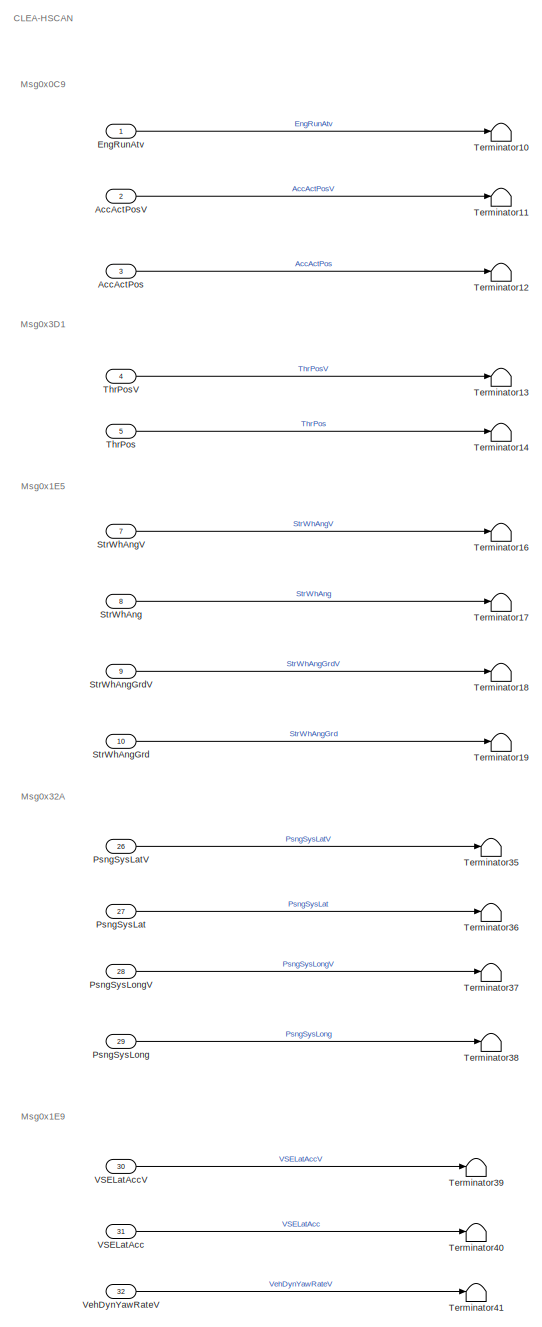
[diagram: root canvas - part 1/8, top left region]
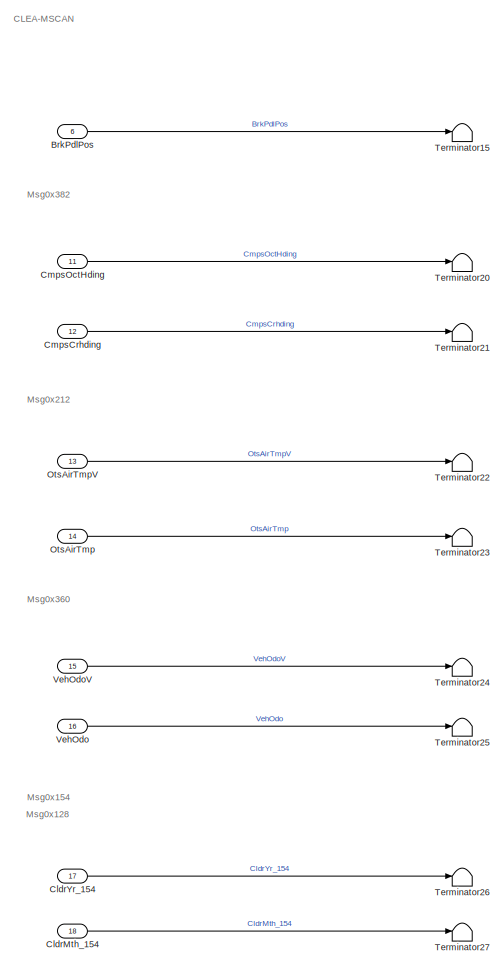
[diagram: root canvas - part 2/8, top center region]
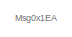
[diagram: root canvas - part 3/8, top center region]
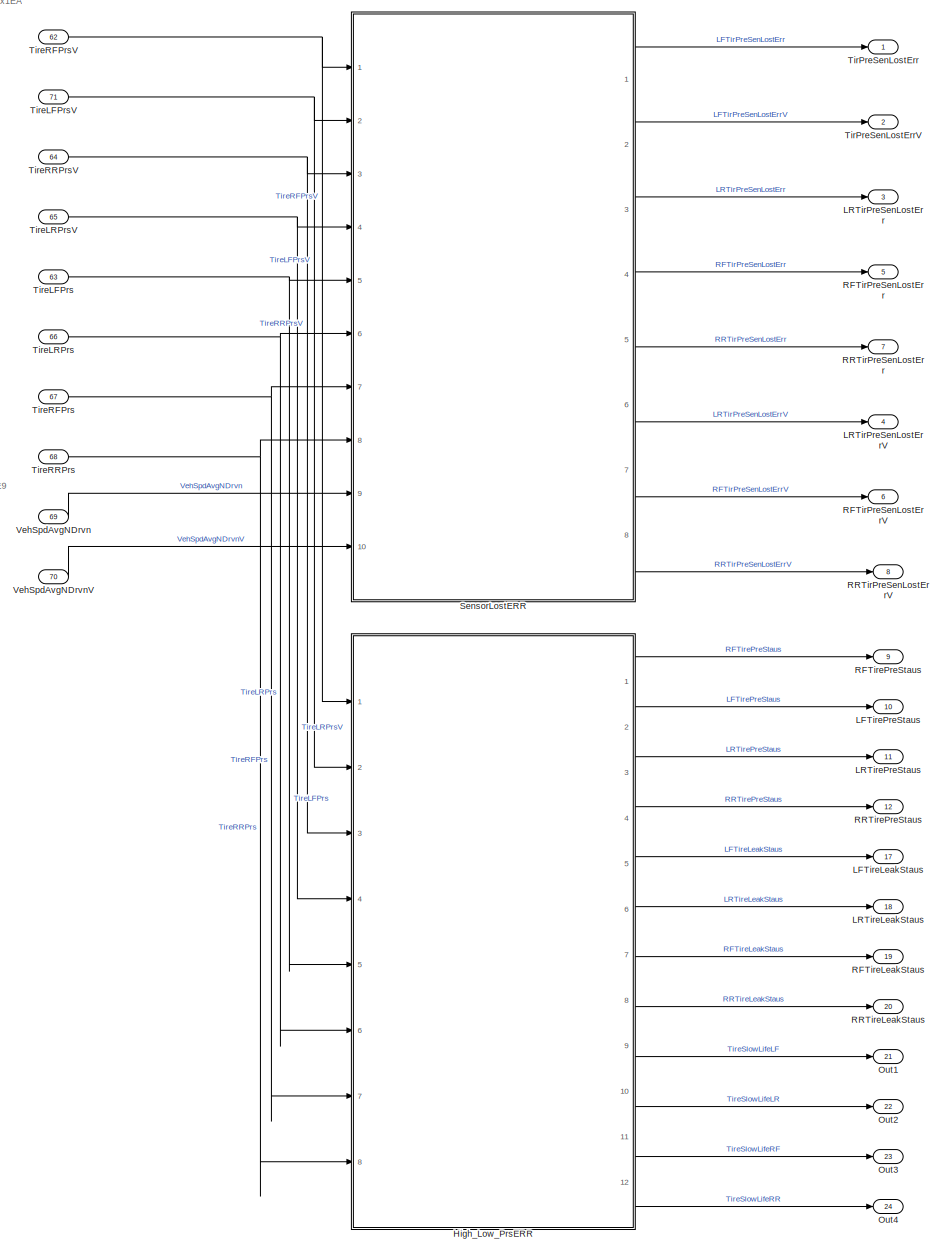
[diagram: root canvas - part 4/8, top right region]
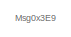
[diagram: root canvas - part 5/8, top center region]
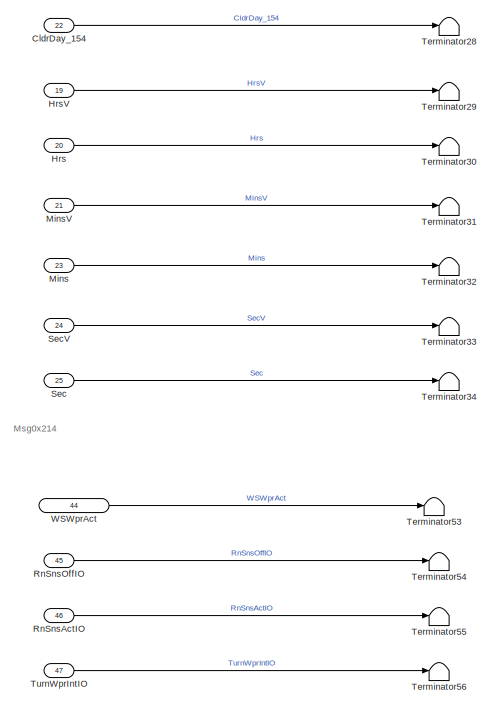
[diagram: root canvas - part 6/8, central region]
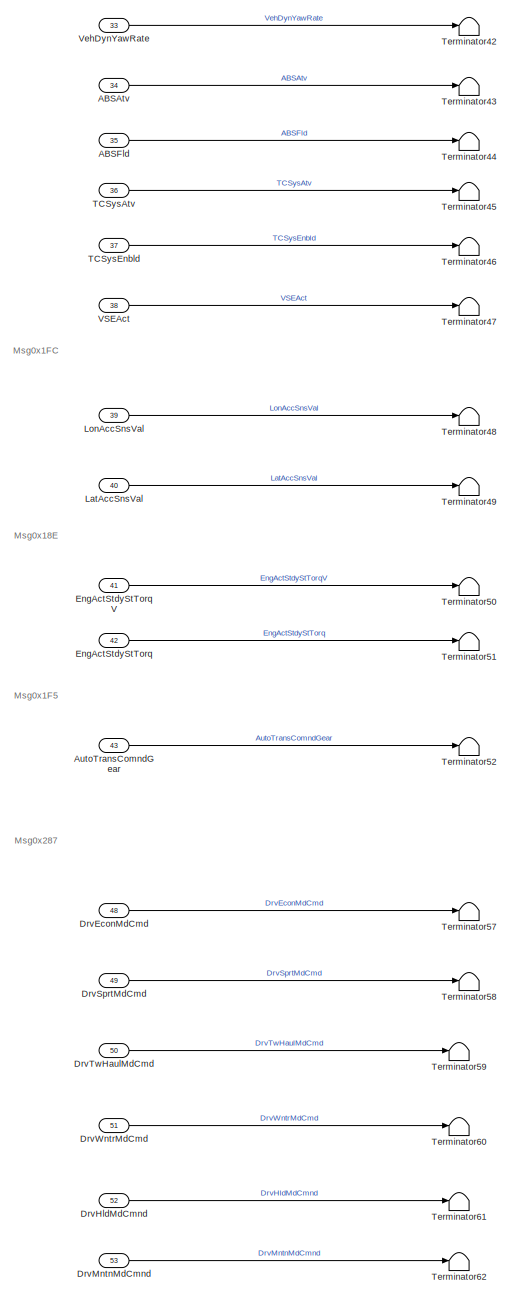
[diagram: root canvas - part 7/8, bottom left region]
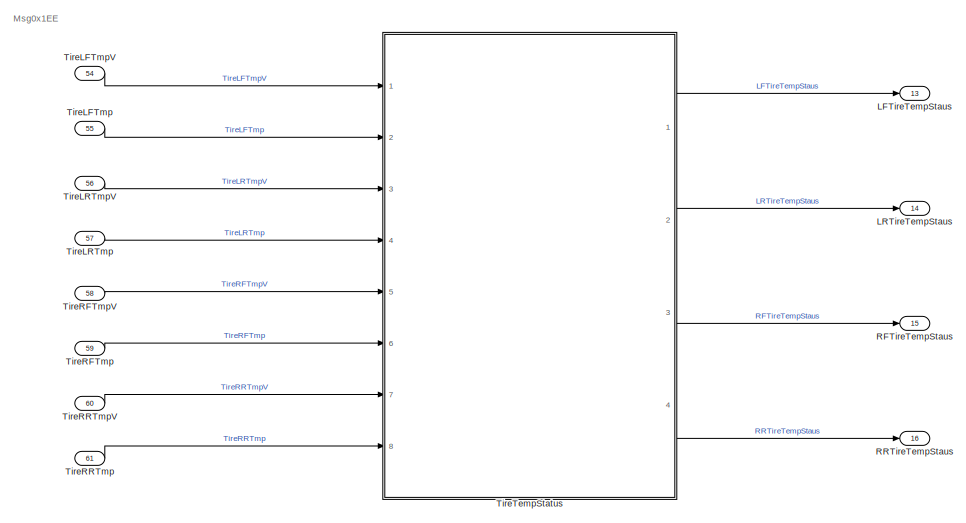
[diagram: root canvas - part 8/8, bottom right region]
MODEL slx_4b5890fa761c
KIND model
CONFIG AbsTol = auto
CONFIG EnableMultiTasking = off
CONFIG FixedStep = 0.1
CONFIG MaxStep = auto
CONFIG MinStep = auto
CONFIG RelTol = 1e-3
CONFIG SampleTimeConstraint = Unconstrained
CONFIG Solver = FixedStepDiscrete
CONFIG SolverName = FixedStepDiscrete
CONFIG StartTime = 0.0
CONFIG StopTime = 10000
WORKSPACE source: MAT-file member
WORKSPACE AilrflowValidFlag1 = [0.01235 0.03834 0.06233 0.08839 0.11261 0.13833 0.16348 0.18843 0.2134 0.23767 0.26241 0.28847 ... (108920 elements, 54460x2)]
BLOCK [Inport] ABSAtv
  IconDisplay = Port number
  OutDataTypeStr = uint8
  Port = 34
BLOCK [Inport] ABSFld
  IconDisplay = Port number
  OutDataTypeStr = uint8
  Port = 35
BLOCK [Inport] AccActPos
  IconDisplay = Port number
  OutDataTypeStr = uint8
  Port = 3
BLOCK [Inport] AccActPosV
  IconDisplay = Port number
  OutDataTypeStr = uint8
  Port = 2
BLOCK [Inport] AutoTransComndGear
  IconDisplay = Port number
  OutDataTypeStr = uint8
  Port = 43
BLOCK [Inport] BrkPdlPos
  IconDisplay = Port number
  OutDataTypeStr = uint8
  Port = 6
BLOCK [Inport] CldrDay_154
  IconDisplay = Port number
  OutDataTypeStr = uint8
  Port = 22
BLOCK [Inport] CldrMth_154
  IconDisplay = Port number
  OutDataTypeStr = uint8
  Port = 18
BLOCK [Inport] CldrYr_154
  IconDisplay = Port number
  OutDataTypeStr = uint16
  Port = 17
BLOCK [Inport] CmpsCrhding
  IconDisplay = Port number
  OutDataTypeStr = uint16
  Port = 12
BLOCK [Inport] CmpsOctHding
  IconDisplay = Port number
  OutDataTypeStr = uint8
  Port = 11
BLOCK [Inport] DrvEconMdCmd
  IconDisplay = Port number
  OutDataTypeStr = uint8
  Port = 48
BLOCK [Inport] DrvHldMdCmnd
  IconDisplay = Port number
  OutDataTypeStr = uint8
  Port = 52
BLOCK [Inport] DrvMntnMdCmnd
  IconDisplay = Port number
  OutDataTypeStr = uint8
  Port = 53
BLOCK [Inport] DrvSprtMdCmd
  IconDisplay = Port number
  OutDataTypeStr = uint8
  Port = 49
BLOCK [Inport] DrvTwHaulMdCmd
  IconDisplay = Port number
  OutDataTypeStr = uint8
  Port = 50
BLOCK [Inport] DrvWntrMdCmd
  IconDisplay = Port number
  OutDataTypeStr = uint8
  Port = 51
BLOCK [Inport] EngActStdyStTorq
  IconDisplay = Port number
  OutDataTypeStr = double
  Port = 42
BLOCK [Inport] EngActStdyStTorqV
  IconDisplay = Port number
  OutDataTypeStr = uint8
  Port = 41
BLOCK [Inport] EngRunAtv
  IconDisplay = Port number
  OutDataTypeStr = uint8
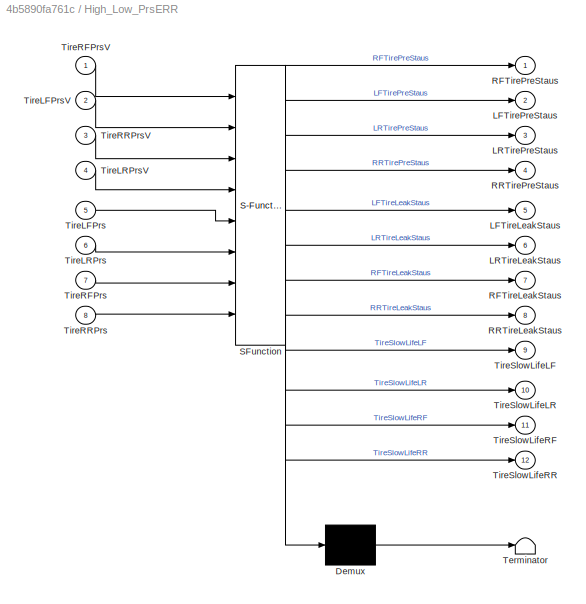
BLOCK [SubSystem] High_Low_PrsERR
  ErrorFcn = Stateflow.Translate.translate
  PermitHierarchicalResolution = ExplicitOnly
  Ports = [8, 12]
  RequestExecContextInheritance = off
  SFBlockType = Chart
  TreatAsAtomicUnit = on
  Variant = off
BLOCK [Demux] High_Low_PrsERR/ Demux 
  Outputs = 1
  Ports = [1, 1]
BLOCK [S-Function] High_Low_PrsERR/ SFunction 
  EnableBusSupport = on
  FunctionName = sf_sfun
  Parameters = pTireHighPreDWLimit,pTireHighPreUpLimit,pTireLowPreDWLimit,pTireLowPreUpLimit
  PortCounts = [8 13]
  Ports = [8, 13]
  SFcnIsStateOwnerBlock = off
  SFunctionDeploymentMode = off
  Tag = Stateflow S-Function ITireAppMdl 1
BLOCK [Terminator] High_Low_PrsERR/ Terminator 
BLOCK [Outport] High_Low_PrsERR/LFTireLeakStaus
  IconDisplay = Port number
  Port = 5
BLOCK [Outport] High_Low_PrsERR/LFTirePreStaus
  IconDisplay = Port number
  Port = 2
BLOCK [Outport] High_Low_PrsERR/LRTireLeakStaus
  IconDisplay = Port number
  Port = 6
BLOCK [Outport] High_Low_PrsERR/LRTirePreStaus
  IconDisplay = Port number
  Port = 3
BLOCK [Outport] High_Low_PrsERR/RFTireLeakStaus
  IconDisplay = Port number
  Port = 7
BLOCK [Outport] High_Low_PrsERR/RFTirePreStaus
  IconDisplay = Port number
BLOCK [Outport] High_Low_PrsERR/RRTireLeakStaus
  IconDisplay = Port number
  Port = 8
BLOCK [Outport] High_Low_PrsERR/RRTirePreStaus
  IconDisplay = Port number
  Port = 4
BLOCK [Inport] High_Low_PrsERR/TireLFPrs
  IconDisplay = Port number
  Port = 5
BLOCK [Inport] High_Low_PrsERR/TireLFPrsV
  IconDisplay = Port number
  Port = 2
BLOCK [Inport] High_Low_PrsERR/TireLRPrs
  IconDisplay = Port number
  Port = 6
BLOCK [Inport] High_Low_PrsERR/TireLRPrsV
  IconDisplay = Port number
  Port = 4
BLOCK [Inport] High_Low_PrsERR/TireRFPrs
  IconDisplay = Port number
  Port = 7
BLOCK [Inport] High_Low_PrsERR/TireRFPrsV
  IconDisplay = Port number
BLOCK [Inport] High_Low_PrsERR/TireRRPrs
  IconDisplay = Port number
  Port = 8
BLOCK [Inport] High_Low_PrsERR/TireRRPrsV
  IconDisplay = Port number
  Port = 3
BLOCK [Outport] High_Low_PrsERR/TireSlowLifeLF
  IconDisplay = Port number
  Port = 9
BLOCK [Outport] High_Low_PrsERR/TireSlowLifeLR
  IconDisplay = Port number
  Port = 10
BLOCK [Outport] High_Low_PrsERR/TireSlowLifeRF
  IconDisplay = Port number
  Port = 11
BLOCK [Outport] High_Low_PrsERR/TireSlowLifeRR
  IconDisplay = Port number
  Port = 12
BLOCK [Inport] Hrs
  IconDisplay = Port number
  OutDataTypeStr = uint8
  Port = 20
BLOCK [Inport] HrsV
  IconDisplay = Port number
  OutDataTypeStr = uint8
  Port = 19
BLOCK [Outport] LFTireLeakStaus
  IconDisplay = Port number
  OutDataTypeStr = uint8
  Port = 17
BLOCK [Outport] LFTirePreStaus
  IconDisplay = Port number
  Port = 10
BLOCK [Outport] LFTireTempStaus
  IconDisplay = Port number
  Port = 13
BLOCK [Outport] LRTirPreSenLostErr
  IconDisplay = Port number
  OutDataTypeStr = uint8
  Port = 3
BLOCK [Outport] LRTirPreSenLostErrV
  IconDisplay = Port number
  OutDataTypeStr = uint8
  Port = 4
BLOCK [Outport] LRTireLeakStaus
  IconDisplay = Port number
  OutDataTypeStr = uint8
  Port = 18
BLOCK [Outport] LRTirePreStaus
  IconDisplay = Port number
  Port = 11
BLOCK [Outport] LRTireTempStaus
  IconDisplay = Port number
  Port = 14
BLOCK [Inport] LatAccSnsVal
  IconDisplay = Port number
  OutDataTypeStr = double
  Port = 40
BLOCK [Inport] LonAccSnsVal
  IconDisplay = Port number
  OutDataTypeStr = double
  Port = 39
BLOCK [Inport] Mins
  IconDisplay = Port number
  OutDataTypeStr = uint8
  Port = 23
BLOCK [Inport] MinsV
  IconDisplay = Port number
  OutDataTypeStr = uint8
  Port = 21
BLOCK [Inport] OtsAirTmp
  IconDisplay = Port number
  OutDataTypeStr = double
  Port = 14
BLOCK [Inport] OtsAirTmpV
  IconDisplay = Port number
  OutDataTypeStr = uint8
  Port = 13
BLOCK [Outport] Out1
  IconDisplay = Port number
  Port = 21
BLOCK [Outport] Out2
  IconDisplay = Port number
  Port = 22
BLOCK [Outport] Out3
  IconDisplay = Port number
  Port = 23
BLOCK [Outport] Out4
  IconDisplay = Port number
  Port = 24
BLOCK [Inport] PsngSysLat
  IconDisplay = Port number
  OutDataTypeStr = int32
  Port = 27
BLOCK [Inport] PsngSysLatV
  IconDisplay = Port number
  OutDataTypeStr = uint8
  Port = 26
BLOCK [Inport] PsngSysLong
  IconDisplay = Port number
  OutDataTypeStr = int32
  Port = 29
BLOCK [Inport] PsngSysLongV
  IconDisplay = Port number
  OutDataTypeStr = uint8
  Port = 28
BLOCK [Outport] RFTirPreSenLostErr
  IconDisplay = Port number
  OutDataTypeStr = uint8
  Port = 5
BLOCK [Outport] RFTirPreSenLostErrV
  IconDisplay = Port number
  OutDataTypeStr = uint8
  Port = 6
BLOCK [Outport] RFTireLeakStaus
  IconDisplay = Port number
  OutDataTypeStr = uint8
  Port = 19
BLOCK [Outport] RFTirePreStaus
  IconDisplay = Port number
  OutDataTypeStr = uint8
  Port = 9
BLOCK [Outport] RFTireTempStaus
  IconDisplay = Port number
  Port = 15
BLOCK [Outport] RRTirPreSenLostErr
  IconDisplay = Port number
  OutDataTypeStr = uint8
  Port = 7
BLOCK [Outport] RRTirPreSenLostErrV
  IconDisplay = Port number
  OutDataTypeStr = uint8
  Port = 8
BLOCK [Outport] RRTireLeakStaus
  IconDisplay = Port number
  OutDataTypeStr = uint8
  Port = 20
BLOCK [Outport] RRTirePreStaus
  IconDisplay = Port number
  Port = 12
BLOCK [Outport] RRTireTempStaus
  IconDisplay = Port number
  Port = 16
BLOCK [Inport] RnSnsActIO
  IconDisplay = Port number
  Port = 46
BLOCK [Inport] RnSnsOffIO
  IconDisplay = Port number
  Port = 45
BLOCK [Inport] Sec
  IconDisplay = Port number
  OutDataTypeStr = uint8
  Port = 25
BLOCK [Inport] SecV
  IconDisplay = Port number
  OutDataTypeStr = uint8
  Port = 24
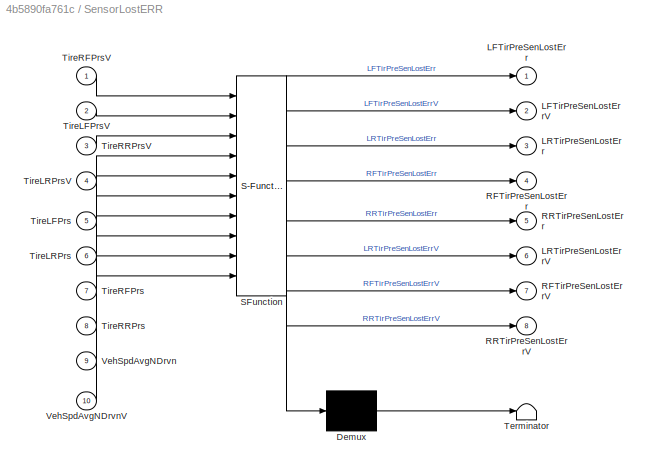
BLOCK [SubSystem] SensorLostERR
  ErrorFcn = Stateflow.Translate.translate
  PermitHierarchicalResolution = ExplicitOnly
  Ports = [10, 8]
  RequestExecContextInheritance = off
  SFBlockType = Chart
  TreatAsAtomicUnit = on
  Variant = off
BLOCK [Demux] SensorLostERR/ Demux 
  Outputs = 1
  Ports = [1, 1]
BLOCK [S-Function] SensorLostERR/ SFunction 
  EnableBusSupport = on
  FunctionName = sf_sfun
  Parameters = pTirePrsLostCountTh
  PortCounts = [10 9]
  Ports = [10, 9]
  SFcnIsStateOwnerBlock = off
  SFunctionDeploymentMode = off
  Tag = Stateflow S-Function ITireAppMdl 3
BLOCK [Terminator] SensorLostERR/ Terminator 
BLOCK [Outport] SensorLostERR/LFTirPreSenLostErr
  IconDisplay = Port number
BLOCK [Outport] SensorLostERR/LFTirPreSenLostErrV
  IconDisplay = Port number
  Port = 2
BLOCK [Outport] SensorLostERR/LRTirPreSenLostErr
  IconDisplay = Port number
  Port = 3
BLOCK [Outport] SensorLostERR/LRTirPreSenLostErrV
  IconDisplay = Port number
  Port = 6
BLOCK [Outport] SensorLostERR/RFTirPreSenLostErr
  IconDisplay = Port number
  Port = 4
BLOCK [Outport] SensorLostERR/RFTirPreSenLostErrV
  IconDisplay = Port number
  Port = 7
BLOCK [Outport] SensorLostERR/RRTirPreSenLostErr
  IconDisplay = Port number
  Port = 5
BLOCK [Outport] SensorLostERR/RRTirPreSenLostErrV
  IconDisplay = Port number
  Port = 8
BLOCK [Inport] SensorLostERR/TireLFPrs
  IconDisplay = Port number
  Port = 5
BLOCK [Inport] SensorLostERR/TireLFPrsV
  IconDisplay = Port number
  Port = 2
BLOCK [Inport] SensorLostERR/TireLRPrs
  IconDisplay = Port number
  Port = 6
BLOCK [Inport] SensorLostERR/TireLRPrsV
  IconDisplay = Port number
  Port = 4
BLOCK [Inport] SensorLostERR/TireRFPrs
  IconDisplay = Port number
  Port = 7
BLOCK [Inport] SensorLostERR/TireRFPrsV
  IconDisplay = Port number
BLOCK [Inport] SensorLostERR/TireRRPrs
  IconDisplay = Port number
  Port = 8
BLOCK [Inport] SensorLostERR/TireRRPrsV
  IconDisplay = Port number
  Port = 3
BLOCK [Inport] SensorLostERR/VehSpdAvgNDrvn
  IconDisplay = Port number
  Port = 9
BLOCK [Inport] SensorLostERR/VehSpdAvgNDrvnV
  IconDisplay = Port number
  Port = 10
BLOCK [Inport] StrWhAng
  IconDisplay = Port number
  OutDataTypeStr = int16
  Port = 8
BLOCK [Inport] StrWhAngGrd
  IconDisplay = Port number
  OutDataTypeStr = int16
  Port = 10
BLOCK [Inport] StrWhAngGrdV
  IconDisplay = Port number
  OutDataTypeStr = uint8
  Port = 9
BLOCK [Inport] StrWhAngV
  IconDisplay = Port number
  OutDataTypeStr = uint8
  Port = 7
BLOCK [Inport] TCSysAtv
  IconDisplay = Port number
  OutDataTypeStr = uint8
  Port = 36
BLOCK [Inport] TCSysEnbld
  IconDisplay = Port number
  OutDataTypeStr = uint8
  Port = 37
BLOCK [Terminator] Terminator10
BLOCK [Terminator] Terminator11
BLOCK [Terminator] Terminator12
BLOCK [Terminator] Terminator13
BLOCK [Terminator] Terminator14
BLOCK [Terminator] Terminator15
BLOCK [Terminator] Terminator16
BLOCK [Terminator] Terminator17
BLOCK [Terminator] Terminator18
BLOCK [Terminator] Terminator19
BLOCK [Terminator] Terminator20
BLOCK [Terminator] Terminator21
BLOCK [Terminator] Terminator22
BLOCK [Terminator] Terminator23
BLOCK [Terminator] Terminator24
BLOCK [Terminator] Terminator25
BLOCK [Terminator] Terminator26
BLOCK [Terminator] Terminator27
BLOCK [Terminator] Terminator28
BLOCK [Terminator] Terminator29
BLOCK [Terminator] Terminator30
BLOCK [Terminator] Terminator31
BLOCK [Terminator] Terminator32
BLOCK [Terminator] Terminator33
BLOCK [Terminator] Terminator34
BLOCK [Terminator] Terminator35
BLOCK [Terminator] Terminator36
BLOCK [Terminator] Terminator37
BLOCK [Terminator] Terminator38
BLOCK [Terminator] Terminator39
BLOCK [Terminator] Terminator40
BLOCK [Terminator] Terminator41
BLOCK [Terminator] Terminator42
BLOCK [Terminator] Terminator43
BLOCK [Terminator] Terminator44
BLOCK [Terminator] Terminator45
BLOCK [Terminator] Terminator46
BLOCK [Terminator] Terminator47
BLOCK [Terminator] Terminator48
BLOCK [Terminator] Terminator49
BLOCK [Terminator] Terminator50
BLOCK [Terminator] Terminator51
BLOCK [Terminator] Terminator52
BLOCK [Terminator] Terminator53
BLOCK [Terminator] Terminator54
BLOCK [Terminator] Terminator55
BLOCK [Terminator] Terminator56
BLOCK [Terminator] Terminator57
BLOCK [Terminator] Terminator58
BLOCK [Terminator] Terminator59
BLOCK [Terminator] Terminator60
BLOCK [Terminator] Terminator61
BLOCK [Terminator] Terminator62
BLOCK [Inport] ThrPos
  IconDisplay = Port number
  OutDataTypeStr = uint8
  Port = 5
BLOCK [Inport] ThrPosV
  IconDisplay = Port number
  OutDataTypeStr = uint8
  Port = 4
BLOCK [Outport] TirPreSenLostErr
  IconDisplay = Port number
  OutDataTypeStr = uint8
BLOCK [Outport] TirPreSenLostErrV
  IconDisplay = Port number
  OutDataTypeStr = uint8
  Port = 2
BLOCK [Inport] TireLFPrs
  IconDisplay = Port number
  Port = 63
BLOCK [Inport] TireLFPrsV
  IconDisplay = Port number
  Port = 71
BLOCK [Inport] TireLFTmp
  IconDisplay = Port number
  OutDataTypeStr = int16
  Port = 55
BLOCK [Inport] TireLFTmpV
  IconDisplay = Port number
  OutDataTypeStr = uint8
  Port = 54
BLOCK [Inport] TireLRPrs
  IconDisplay = Port number
  Port = 66
BLOCK [Inport] TireLRPrsV
  IconDisplay = Port number
  Port = 65
BLOCK [Inport] TireLRTmp
  IconDisplay = Port number
  OutDataTypeStr = int16
  Port = 57
BLOCK [Inport] TireLRTmpV
  IconDisplay = Port number
  OutDataTypeStr = uint8
  Port = 56
BLOCK [Inport] TireRFPrs
  IconDisplay = Port number
  Port = 67
BLOCK [Inport] TireRFPrsV
  IconDisplay = Port number
  Port = 62
BLOCK [Inport] TireRFTmp
  IconDisplay = Port number
  OutDataTypeStr = int16
  Port = 59
BLOCK [Inport] TireRFTmpV
  IconDisplay = Port number
  OutDataTypeStr = uint8
  Port = 58
BLOCK [Inport] TireRRPrs
  IconDisplay = Port number
  Port = 68
BLOCK [Inport] TireRRPrsV
  IconDisplay = Port number
  Port = 64
BLOCK [Inport] TireRRTmp
  IconDisplay = Port number
  OutDataTypeStr = int16
  Port = 61
BLOCK [Inport] TireRRTmpV
  IconDisplay = Port number
  OutDataTypeStr = uint8
  Port = 60
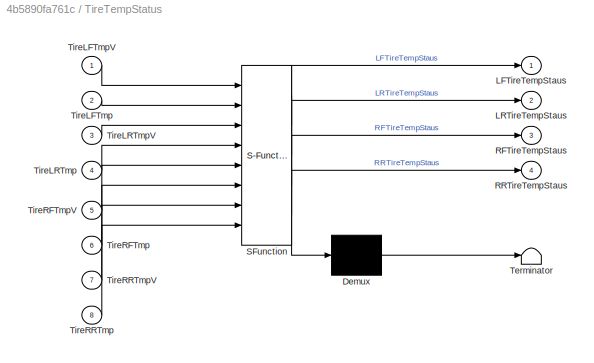
BLOCK [SubSystem] TireTempStatus
  ErrorFcn = Stateflow.Translate.translate
  PermitHierarchicalResolution = ExplicitOnly
  Ports = [8, 4]
  RequestExecContextInheritance = off
  SFBlockType = Chart
  TreatAsAtomicUnit = on
  Variant = off
BLOCK [Demux] TireTempStatus/ Demux 
  Outputs = 1
  Ports = [1, 1]
BLOCK [S-Function] TireTempStatus/ SFunction 
  EnableBusSupport = on
  FunctionName = sf_sfun
  PortCounts = [8 5]
  Ports = [8, 5]
  SFcnIsStateOwnerBlock = off
  SFunctionDeploymentMode = off
  Tag = Stateflow S-Function ITireAppMdl 2
BLOCK [Terminator] TireTempStatus/ Terminator 
BLOCK [Outport] TireTempStatus/LFTireTempStaus
  IconDisplay = Port number
BLOCK [Outport] TireTempStatus/LRTireTempStaus
  IconDisplay = Port number
  Port = 2
BLOCK [Outport] TireTempStatus/RFTireTempStaus
  IconDisplay = Port number
  Port = 3
BLOCK [Outport] TireTempStatus/RRTireTempStaus
  IconDisplay = Port number
  Port = 4
BLOCK [Inport] TireTempStatus/TireLFTmp
  IconDisplay = Port number
  Port = 2
BLOCK [Inport] TireTempStatus/TireLFTmpV
  IconDisplay = Port number
BLOCK [Inport] TireTempStatus/TireLRTmp
  IconDisplay = Port number
  Port = 4
BLOCK [Inport] TireTempStatus/TireLRTmpV
  IconDisplay = Port number
  Port = 3
BLOCK [Inport] TireTempStatus/TireRFTmp
  IconDisplay = Port number
  Port = 6
BLOCK [Inport] TireTempStatus/TireRFTmpV
  IconDisplay = Port number
  Port = 5
BLOCK [Inport] TireTempStatus/TireRRTmp
  IconDisplay = Port number
  Port = 8
BLOCK [Inport] TireTempStatus/TireRRTmpV
  IconDisplay = Port number
  Port = 7
BLOCK [Inport] TurnWprIntIO
  IconDisplay = Port number
  Port = 47
BLOCK [Inport] VSEAct
  IconDisplay = Port number
  OutDataTypeStr = uint8
  Port = 38
BLOCK [Inport] VSELatAcc
  IconDisplay = Port number
  OutDataTypeStr = double
  Port = 31
BLOCK [Inport] VSELatAccV
  IconDisplay = Port number
  OutDataTypeStr = uint8
  Port = 30
BLOCK [Inport] VehDynYawRate
  IconDisplay = Port number
  OutDataTypeStr = double
  Port = 33
BLOCK [Inport] VehDynYawRateV
  IconDisplay = Port number
  OutDataTypeStr = uint8
  Port = 32
BLOCK [Inport] VehOdo
  IconDisplay = Port number
  OutDataTypeStr = uint32
  Port = 16
BLOCK [Inport] VehOdoV
  IconDisplay = Port number
  OutDataTypeStr = uint8
  Port = 15
BLOCK [Inport] VehSpdAvgNDrvn
  IconDisplay = Port number
  Port = 69
BLOCK [Inport] VehSpdAvgNDrvnV
  IconDisplay = Port number
  OutDataTypeStr = uint8
  Port = 70
BLOCK [Inport] WSWprAct
  IconDisplay = Port number
  OutDataTypeStr = uint8
  Port = 44
ANNOTATION (root): CLEA-HSCAN
ANNOTATION (root): CLEA-MSCAN
ANNOTATION (root): Msg0x0C9
ANNOTATION (root): Msg0x128
ANNOTATION (root): Msg0x154
ANNOTATION (root): Msg0x18E
ANNOTATION (root): Msg0x1E5
ANNOTATION (root): Msg0x1E9
ANNOTATION (root): Msg0x1EA
ANNOTATION (root): Msg0x1EE
ANNOTATION (root): Msg0x1F5
ANNOTATION (root): Msg0x1FC
ANNOTATION (root): Msg0x212
ANNOTATION (root): Msg0x214
ANNOTATION (root): Msg0x287
ANNOTATION (root): Msg0x32A
ANNOTATION (root): Msg0x360
ANNOTATION (root): Msg0x382
ANNOTATION (root): Msg0x3D1
ANNOTATION (root): Msg0x3E9
LINE ABSAtv:1 -> Terminator43:1
LINE ABSFld:1 -> Terminator44:1
LINE AccActPos:1 -> Terminator12:1
LINE AccActPosV:1 -> Terminator11:1
LINE AutoTransComndGear:1 -> Terminator52:1
LINE BrkPdlPos:1 -> Terminator15:1
LINE CldrDay_154:1 -> Terminator28:1
LINE CldrMth_154:1 -> Terminator27:1
LINE CldrYr_154:1 -> Terminator26:1
LINE CmpsCrhding:1 -> Terminator21:1
LINE CmpsOctHding:1 -> Terminator20:1
LINE DrvEconMdCmd:1 -> Terminator57:1
LINE DrvHldMdCmnd:1 -> Terminator61:1
LINE DrvMntnMdCmnd:1 -> Terminator62:1
LINE DrvSprtMdCmd:1 -> Terminator58:1
LINE DrvTwHaulMdCmd:1 -> Terminator59:1
LINE DrvWntrMdCmd:1 -> Terminator60:1
LINE EngActStdyStTorq:1 -> Terminator51:1
LINE EngActStdyStTorqV:1 -> Terminator50:1
LINE EngRunAtv:1 -> Terminator10:1
LINE High_Low_PrsERR:1 -> RFTirePreStaus:1
LINE High_Low_PrsERR:10 -> Out2:1
LINE High_Low_PrsERR:11 -> Out3:1
LINE High_Low_PrsERR:12 -> Out4:1
LINE High_Low_PrsERR:2 -> LFTirePreStaus:1
LINE High_Low_PrsERR:3 -> LRTirePreStaus:1
LINE High_Low_PrsERR:4 -> RRTirePreStaus:1
LINE High_Low_PrsERR:5 -> LFTireLeakStaus:1
LINE High_Low_PrsERR:6 -> LRTireLeakStaus:1
LINE High_Low_PrsERR:7 -> RFTireLeakStaus:1
LINE High_Low_PrsERR:8 -> RRTireLeakStaus:1
LINE High_Low_PrsERR:9 -> Out1:1
LINE Hrs:1 -> Terminator30:1
LINE HrsV:1 -> Terminator29:1
LINE LatAccSnsVal:1 -> Terminator49:1
LINE LonAccSnsVal:1 -> Terminator48:1
LINE Mins:1 -> Terminator32:1
LINE MinsV:1 -> Terminator31:1
LINE OtsAirTmp:1 -> Terminator23:1
LINE OtsAirTmpV:1 -> Terminator22:1
LINE PsngSysLat:1 -> Terminator36:1
LINE PsngSysLatV:1 -> Terminator35:1
LINE PsngSysLong:1 -> Terminator38:1
LINE PsngSysLongV:1 -> Terminator37:1
LINE RnSnsActIO:1 -> Terminator55:1
LINE RnSnsOffIO:1 -> Terminator54:1
LINE Sec:1 -> Terminator34:1
LINE SecV:1 -> Terminator33:1
LINE SensorLostERR:1 -> TirPreSenLostErr:1
LINE SensorLostERR:2 -> TirPreSenLostErrV:1
LINE SensorLostERR:3 -> LRTirPreSenLostErr:1
LINE SensorLostERR:4 -> RFTirPreSenLostErr:1
LINE SensorLostERR:5 -> RRTirPreSenLostErr:1
LINE SensorLostERR:6 -> LRTirPreSenLostErrV:1
LINE SensorLostERR:7 -> RFTirPreSenLostErrV:1
LINE SensorLostERR:8 -> RRTirPreSenLostErrV:1
LINE StrWhAng:1 -> Terminator17:1
LINE StrWhAngGrd:1 -> Terminator19:1
LINE StrWhAngGrdV:1 -> Terminator18:1
LINE StrWhAngV:1 -> Terminator16:1
LINE TCSysAtv:1 -> Terminator45:1
LINE TCSysEnbld:1 -> Terminator46:1
LINE ThrPos:1 -> Terminator14:1
LINE ThrPosV:1 -> Terminator13:1
NET TireLFPrs:1 -> High_Low_PrsERR:5, SensorLostERR:5
NET TireLFPrsV:1 -> High_Low_PrsERR:2, SensorLostERR:2
LINE TireLFTmp:1 -> TireTempStatus:2
LINE TireLFTmpV:1 -> TireTempStatus:1
NET TireLRPrs:1 -> High_Low_PrsERR:6, SensorLostERR:6
NET TireLRPrsV:1 -> High_Low_PrsERR:4, SensorLostERR:4
LINE TireLRTmp:1 -> TireTempStatus:4
LINE TireLRTmpV:1 -> TireTempStatus:3
NET TireRFPrs:1 -> High_Low_PrsERR:7, SensorLostERR:7
NET TireRFPrsV:1 -> High_Low_PrsERR:1, SensorLostERR:1
LINE TireRFTmp:1 -> TireTempStatus:6
LINE TireRFTmpV:1 -> TireTempStatus:5
NET TireRRPrs:1 -> High_Low_PrsERR:8, SensorLostERR:8
NET TireRRPrsV:1 -> High_Low_PrsERR:3, SensorLostERR:3
LINE TireRRTmp:1 -> TireTempStatus:8
LINE TireRRTmpV:1 -> TireTempStatus:7
LINE TireTempStatus:1 -> LFTireTempStaus:1
LINE TireTempStatus:2 -> LRTireTempStaus:1
LINE TireTempStatus:3 -> RFTireTempStaus:1
LINE TireTempStatus:4 -> RRTireTempStaus:1
LINE TurnWprIntIO:1 -> Terminator56:1
LINE VSEAct:1 -> Terminator47:1
LINE VSELatAcc:1 -> Terminator40:1
LINE VSELatAccV:1 -> Terminator39:1
LINE VehDynYawRate:1 -> Terminator42:1
LINE VehDynYawRateV:1 -> Terminator41:1
LINE VehOdo:1 -> Terminator25:1
LINE VehOdoV:1 -> Terminator24:1
LINE VehSpdAvgNDrvn:1 -> SensorLostERR:9
LINE VehSpdAvgNDrvnV:1 -> SensorLostERR:10
LINE WSWprAct:1 -> Terminator53:1
note: NET lines group one-source signal fan-out (src -> all destinations, sorted); 1:1 wires keep LINE
CHART High_Low_PrsERR states=0 transitions=238
CHART TireTempStatus states=0 transitions=33
CHART SensorLostERR states=0 transitions=44
